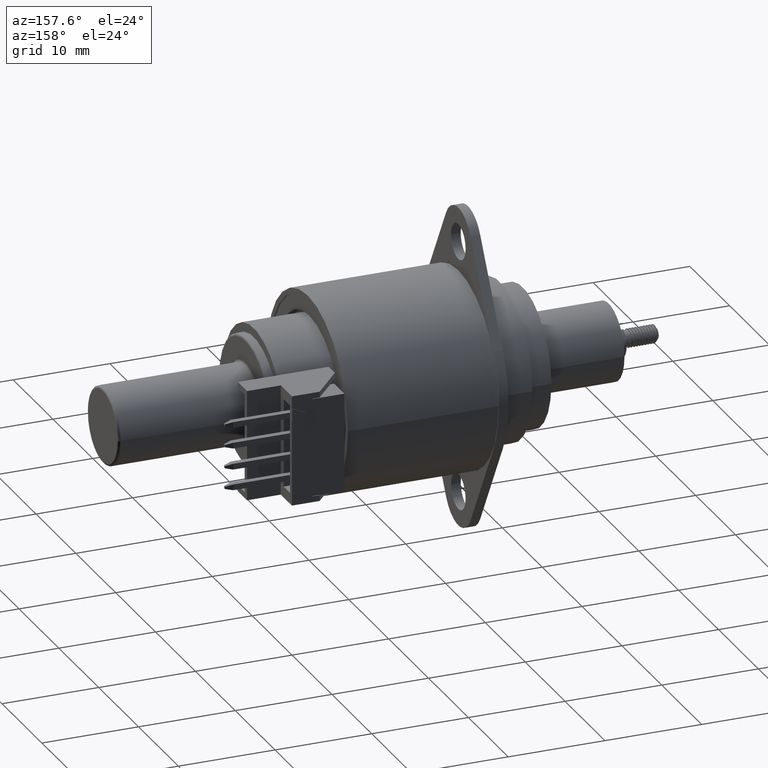
[diagram: clean part render]
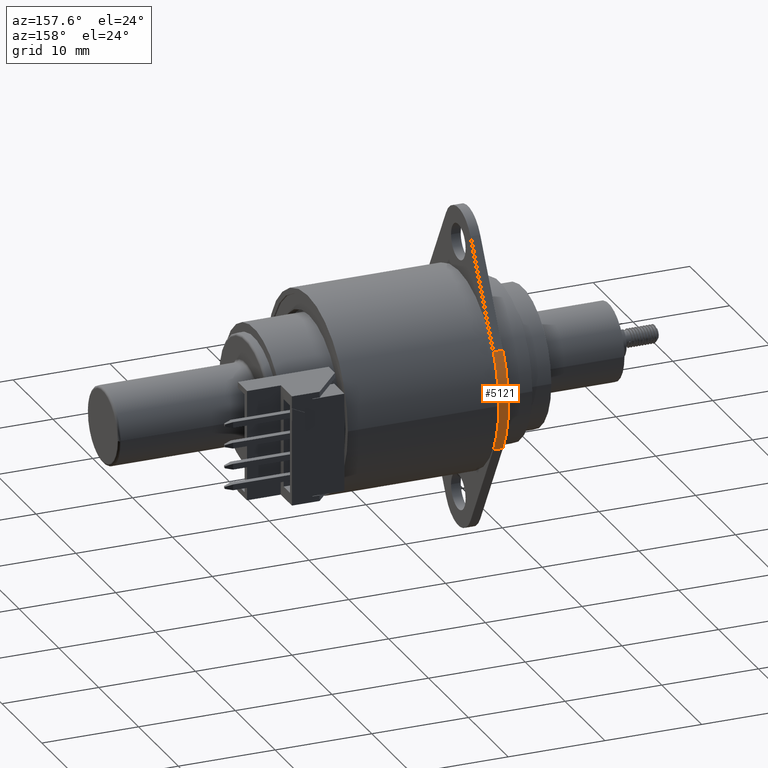
[diagram: same view with one face highlighted and labeled with its STEP entity id]
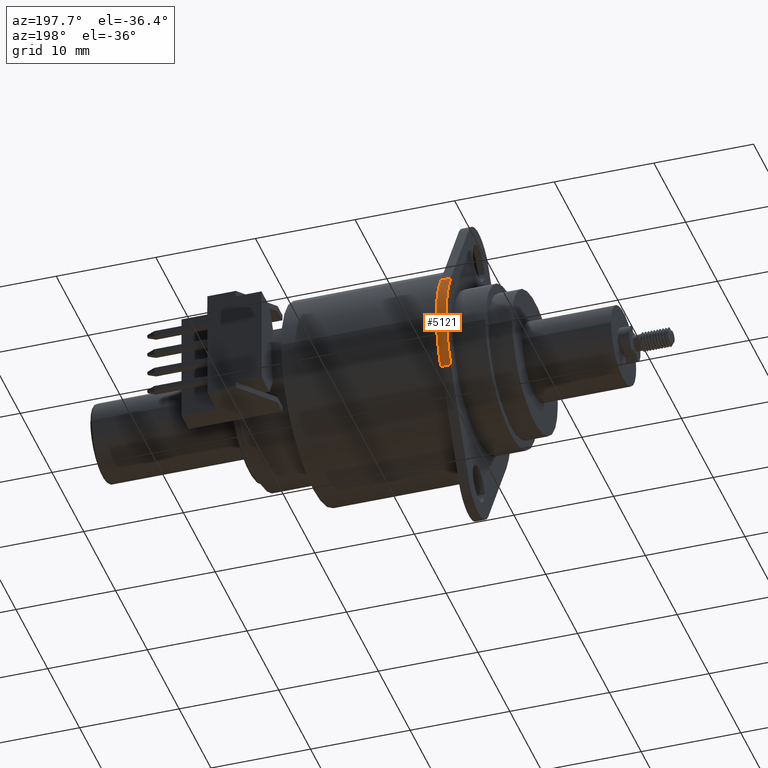
[diagram: same view with one face highlighted and labeled with its STEP entity id]
A machine part, auxiliary view. The second image highlights one B-rep face of the part: STEP entity #5121.
A second angle (auxiliary view) of the same face is appended — the face is thin or edge-on in the first view.
In plain terms, the highlighted cylindrical surface (partial cylindrical patch) has radius 10.16 mm, axis along (1, 0, 0).
Its self-contained STEP definition (entity closure, byte-faithful):
#4732=CARTESIAN_POINT('',(0.E0,0.E0,0.E0));
#4733=DIRECTION('',(0.E0,0.E0,1.E0));
#4734=DIRECTION('',(-8.632045332189E-1,5.048543689326E-1,0.E0));
#4735=AXIS2_PLACEMENT_3D('',#4732,#4733,#4734);
#4737=CARTESIAN_POINT('',(0.E0,0.E0,0.E0));
#4738=DIRECTION('',(0.E0,0.E0,1.E0));
#4739=DIRECTION('',(-1.E0,0.E0,0.E0));
#4740=AXIS2_PLACEMENT_3D('',#4737,#4738,#4739);
#4818=DIRECTION('',(-1.256749921276E-12,-2.282438197833E-12,1.E0));
#4819=VECTOR('',#4818,3.94E-2);
#4820=CARTESIAN_POINT('',(-3.452818132876E-1,2.019417475729E-1,0.E0));
#4821=LINE('',#4820,#4819);
#4822=DIRECTION('',(2.244397561203E-12,-4.552196183457E-12,-1.E0));
#4823=VECTOR('',#4822,3.94E-2);
#4824=CARTESIAN_POINT('',(-3.452818132878E-1,-2.019417475726E-1,3.94E-2));
#4825=LINE('',#4824,#4823);
#4862=CARTESIAN_POINT('',(0.E0,0.E0,3.94E-2));
#4863=DIRECTION('',(0.E0,0.E0,-1.E0));
#4864=DIRECTION('',(-8.632045332200E-1,-5.048543689307E-1,0.E0));
#4865=AXIS2_PLACEMENT_3D('',#4862,#4863,#4864);
#4867=CARTESIAN_POINT('',(0.E0,0.E0,3.94E-2));
#4868=DIRECTION('',(0.E0,0.E0,-1.E0));
#4869=DIRECTION('',(-1.E0,0.E0,0.E0));
#4870=AXIS2_PLACEMENT_3D('',#4867,#4868,#4869);
#4909=CARTESIAN_POINT('',(-3.452818132876E-1,2.019417475729E-1,0.E0));
#4911=VERTEX_POINT('',#4909);
#4912=CARTESIAN_POINT('',(-4.E-1,0.E0,0.E0));
#4913=VERTEX_POINT('',#4912);
#4914=CARTESIAN_POINT('',(-3.452818132877E-1,-2.019417475728E-1,0.E0));
#4915=VERTEX_POINT('',#4914);
#4938=CARTESIAN_POINT('',(-3.452818132877E-1,2.019417475728E-1,3.94E-2));
#4939=VERTEX_POINT('',#4938);
#4952=CARTESIAN_POINT('',(-3.452818132878E-1,-2.019417475726E-1,3.94E-2));
#4953=VERTEX_POINT('',#4952);
#4954=CARTESIAN_POINT('',(-4.E-1,0.E0,3.94E-2));
#4955=VERTEX_POINT('',#4954);
#5106=CARTESIAN_POINT('',(0.E0,0.E0,0.E0));
#5107=DIRECTION('',(0.E0,0.E0,1.E0));
#5108=DIRECTION('',(1.E0,0.E0,0.E0));
#5109=AXIS2_PLACEMENT_3D('',#5106,#5107,#5108);
#5110=CYLINDRICAL_SURFACE('',#5109,4.E-1);
#5111=ORIENTED_EDGE('',*,*,#4973,.F.);
#5112=ORIENTED_EDGE('',*,*,#4971,.F.);
#5113=ORIENTED_EDGE('',*,*,#5014,.T.);
#5115=ORIENTED_EDGE('',*,*,#5114,.F.);
#5117=ORIENTED_EDGE('',*,*,#5116,.F.);
#5118=ORIENTED_EDGE('',*,*,#5098,.T.);
#5119=EDGE_LOOP('',(#5111,#5112,#5113,#5115,#5117,#5118));
#5120=FACE_OUTER_BOUND('',#5119,.F.);
#5121=ADVANCED_FACE('',(#5120),#5110,.T.);
#4736=CIRCLE('',#4735,4.E-1);
#4741=CIRCLE('',#4740,4.E-1);
#4866=CIRCLE('',#4865,4.E-1);
#4871=CIRCLE('',#4870,4.E-1);
#4971=EDGE_CURVE('',#4911,#4913,#4736,.T.);
#4973=EDGE_CURVE('',#4913,#4915,#4741,.T.);
#5014=EDGE_CURVE('',#4911,#4939,#4821,.T.);
#5098=EDGE_CURVE('',#4953,#4915,#4825,.T.);
#5114=EDGE_CURVE('',#4955,#4939,#4871,.T.);
#5116=EDGE_CURVE('',#4953,#4955,#4866,.T.);